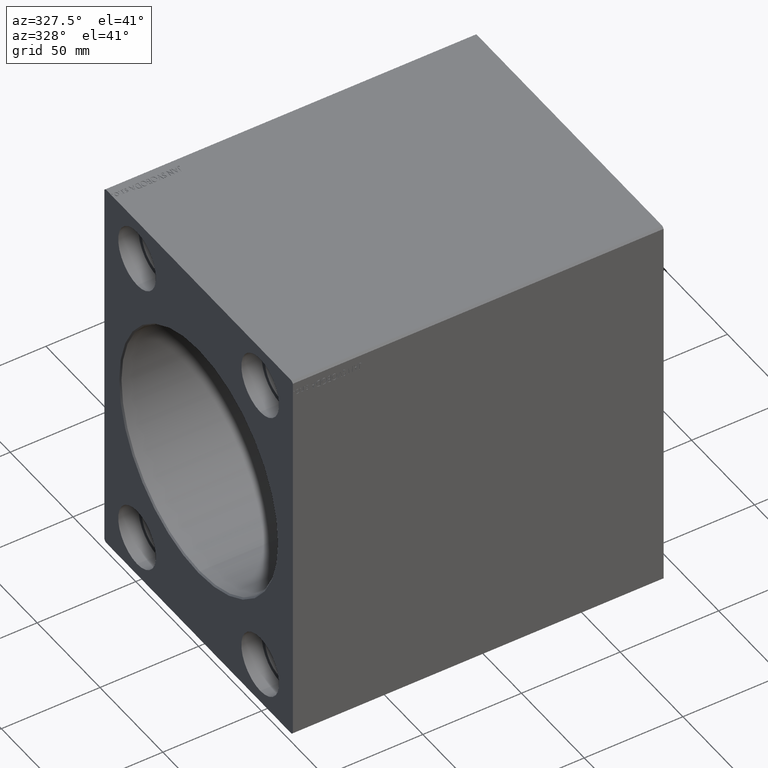
[diagram: clean part render]
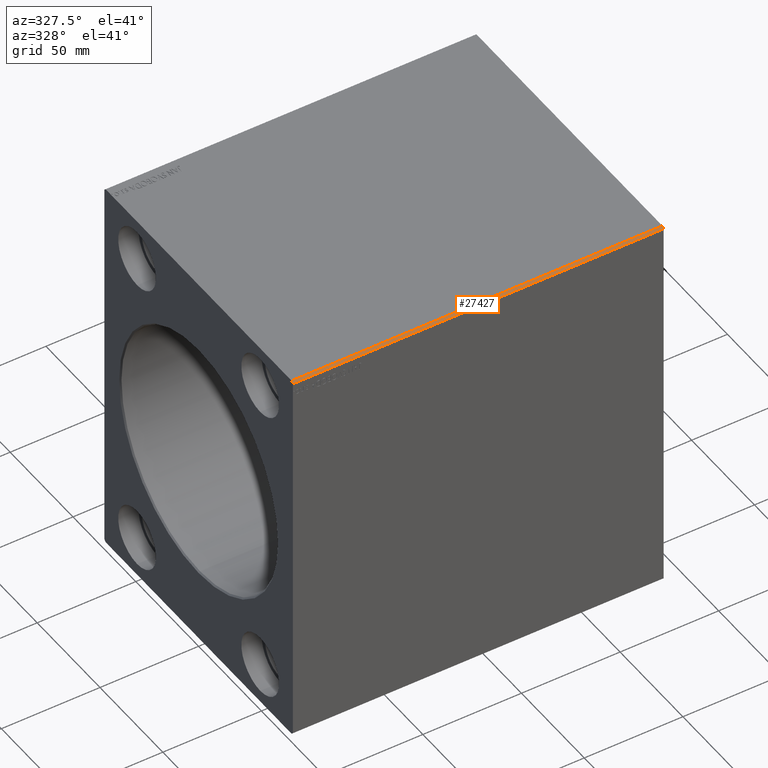
[diagram: same view with one face highlighted and labeled with its STEP entity id]
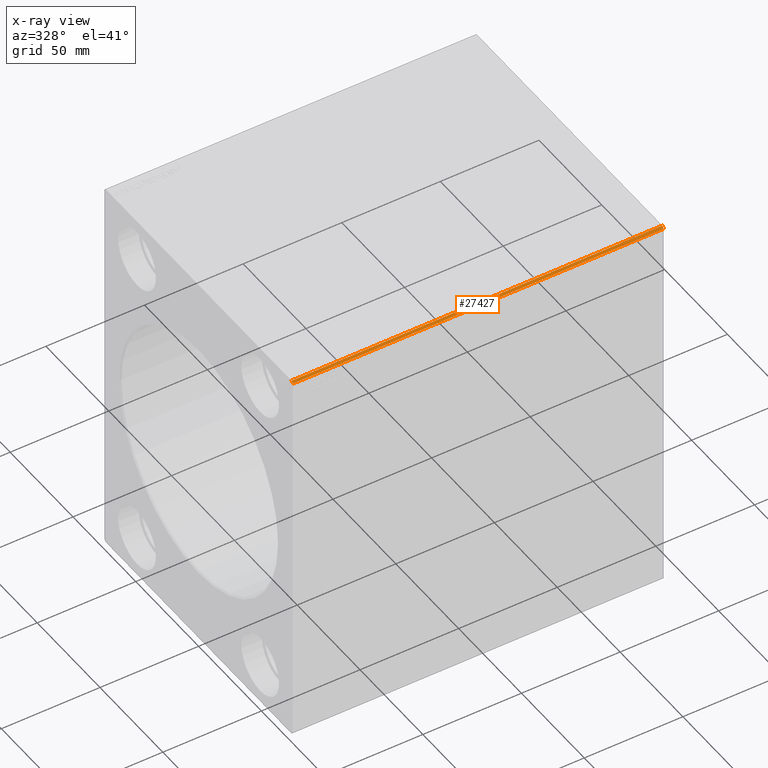
[diagram: x-ray of the same camera — body ghosted, the highlighted face saturated]
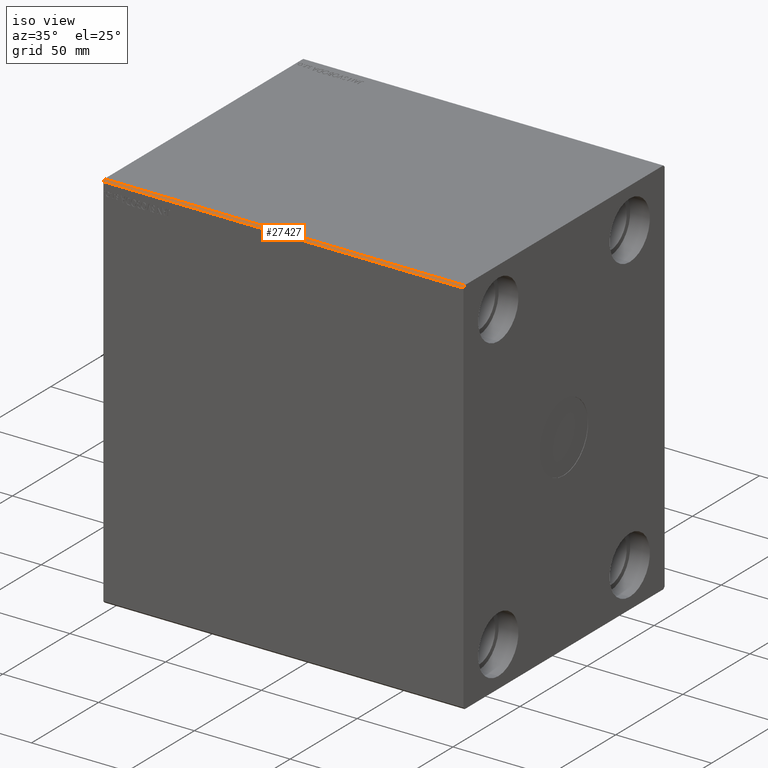
[diagram: same view with one face highlighted and labeled with its STEP entity id]
A machine part, auxiliary view. The second image highlights one B-rep face of the part: STEP entity #27427.
The next image is the same camera in x-ray: the body ghosted, the highlighted face saturated — about 0% of this face is hidden behind the body in this view.
A second angle (iso view) of the same face is appended — the face is thin or edge-on in the first view.
In plain terms, the highlighted planar face has unit normal (0, 0.7071, -0.7071).
Its self-contained STEP definition (entity closure, byte-faithful):
#356 = DIRECTION ( 'NONE',  ( 0.000000000000000000, 0.7071067811865475727, -0.7071067811865475727 ) ) ;
#997 = VECTOR ( 'NONE', #38292, 1000.000000000000114 ) ;
#1917 = EDGE_CURVE ( 'NONE', #30328, #12692, #35491, .T. ) ;
#3095 = DIRECTION ( 'NONE',  ( -1.000000000000000000, -0.000000000000000000, -0.000000000000000000 ) ) ;
#3768 = LINE ( 'NONE', #26004, #19541 ) ;
#5059 = ORIENTED_EDGE ( 'NONE', *, *, #1917, .T. ) ;
#7070 = CARTESIAN_POINT ( 'NONE',  ( 0.000000000000000000, -74.00000000000000000, 99.99999999999994316 ) ) ;
#9764 = CARTESIAN_POINT ( 'NONE',  ( 188.0000000000000000, -74.00000000000000000, 99.99999999999994316 ) ) ;
#11705 = VECTOR ( 'NONE', #3095, 1000.000000000000000 ) ;
#12292 = EDGE_CURVE ( 'NONE', #32557, #31124, #3768, .T. ) ;
#12559 = DIRECTION ( 'NONE',  ( 0.000000000000000000, 0.7071067811865474617, 0.7071067811865474617 ) ) ;
#12692 = VERTEX_POINT ( 'NONE', #15400 ) ;
#12980 = PLANE ( 'NONE',  #23099 ) ;
#13177 = CARTESIAN_POINT ( 'NONE',  ( 188.0000000000000000, -75.00000000000000000, 98.99999999999994316 ) ) ;
#14657 = LINE ( 'NONE', #24482, #15704 ) ;
#14769 = ORIENTED_EDGE ( 'NONE', *, *, #36971, .T. ) ;
#15400 = CARTESIAN_POINT ( 'NONE',  ( 0.000000000000000000, -75.00000000000000000, 98.99999999999994316 ) ) ;
#15704 = VECTOR ( 'NONE', #21279, 1000.000000000000000 ) ;
#16782 = LINE ( 'NONE', #35411, #11705 ) ;
#17772 = CARTESIAN_POINT ( 'NONE',  ( 188.0000000000000000, -74.00000000000000000, 99.99999999999994316 ) ) ;
#19541 = VECTOR ( 'NONE', #32429, 1000.000000000000114 ) ;
#19669 = ORIENTED_EDGE ( 'NONE', *, *, #12292, .F. ) ;
#20994 = EDGE_LOOP ( 'NONE', ( #5059, #26236, #19669, #14769 ) ) ;
#21279 = DIRECTION ( 'NONE',  ( -1.000000000000000000, -0.000000000000000000, -0.000000000000000000 ) ) ;
#23099 = AXIS2_PLACEMENT_3D ( 'NONE', #9764, #356, #12559 ) ;
#24482 = CARTESIAN_POINT ( 'NONE',  ( 188.0000000000000000, -75.00000000000000000, 98.99999999999994316 ) ) ;
#26004 = CARTESIAN_POINT ( 'NONE',  ( 188.0000000000000000, -74.00000000000000000, 99.99999999999994316 ) ) ;
#26236 = ORIENTED_EDGE ( 'NONE', *, *, #31810, .F. ) ;
#27427 = ADVANCED_FACE ( 'NONE', ( #32866 ), #12980, .F. ) ;
#30328 = VERTEX_POINT ( 'NONE', #7070 ) ;
#31124 = VERTEX_POINT ( 'NONE', #13177 ) ;
#31810 = EDGE_CURVE ( 'NONE', #31124, #12692, #14657, .T. ) ;
#32429 = DIRECTION ( 'NONE',  ( 0.000000000000000000, -0.7071067811865474617, -0.7071067811865474617 ) ) ;
#32557 = VERTEX_POINT ( 'NONE', #17772 ) ;
#32866 = FACE_OUTER_BOUND ( 'NONE', #20994, .T. ) ;
#35411 = CARTESIAN_POINT ( 'NONE',  ( 188.0000000000000000, -74.00000000000000000, 99.99999999999994316 ) ) ;
#35491 = LINE ( 'NONE', #38078, #997 ) ;
#36971 = EDGE_CURVE ( 'NONE', #32557, #30328, #16782, .T. ) ;
#38078 = CARTESIAN_POINT ( 'NONE',  ( 0.000000000000000000, -74.00000000000000000, 99.99999999999994316 ) ) ;
#38292 = DIRECTION ( 'NONE',  ( 0.000000000000000000, -0.7071067811865474617, -0.7071067811865474617 ) ) ;